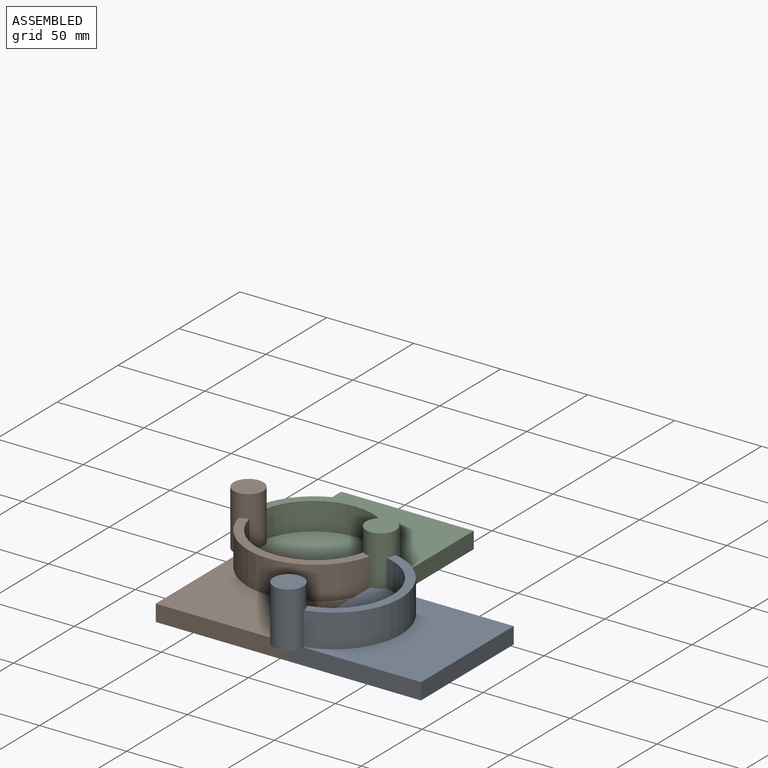
[diagram: assembled view]
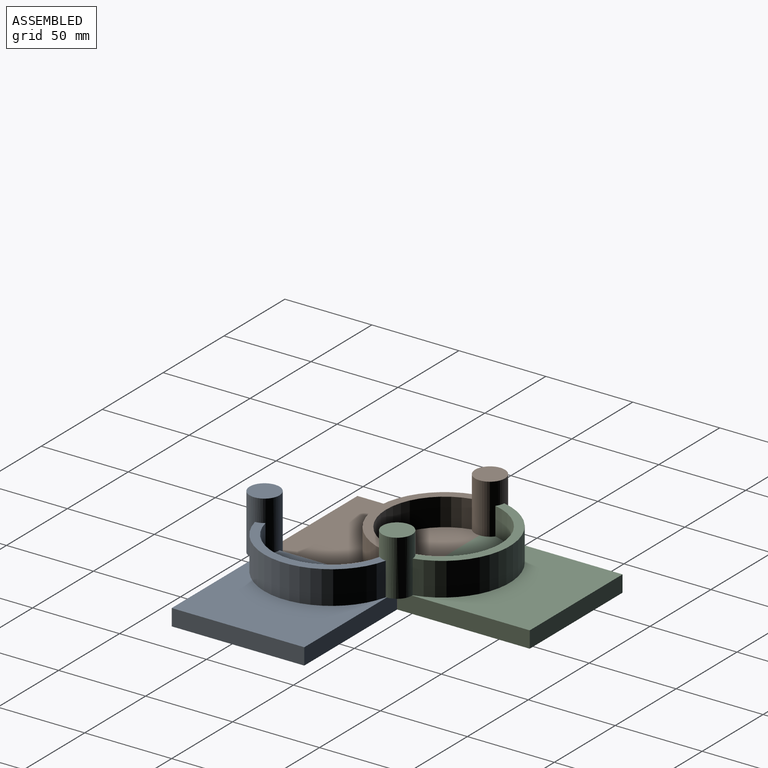
[diagram: assembled view, second angle]
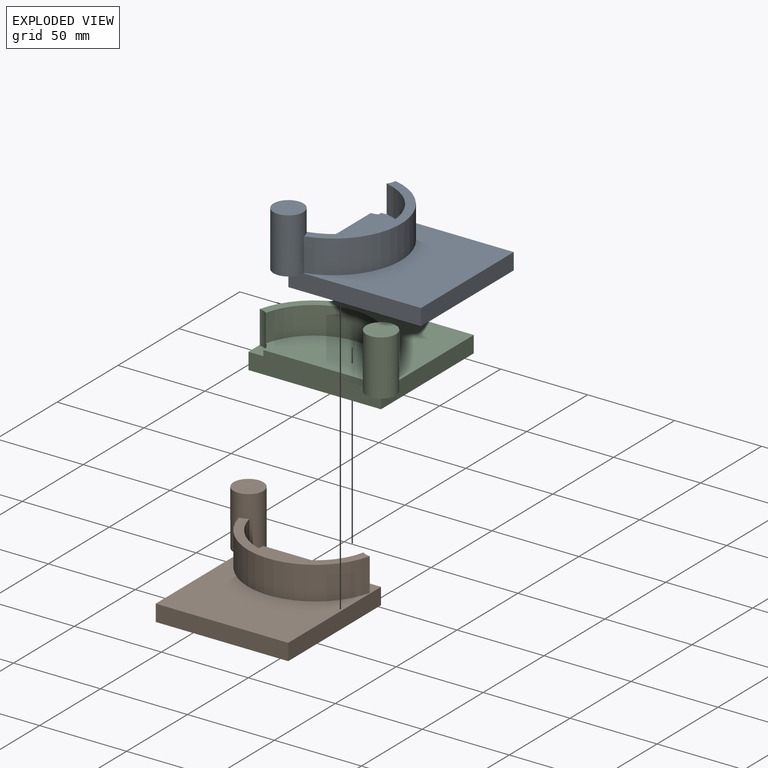
[diagram: exploded view]
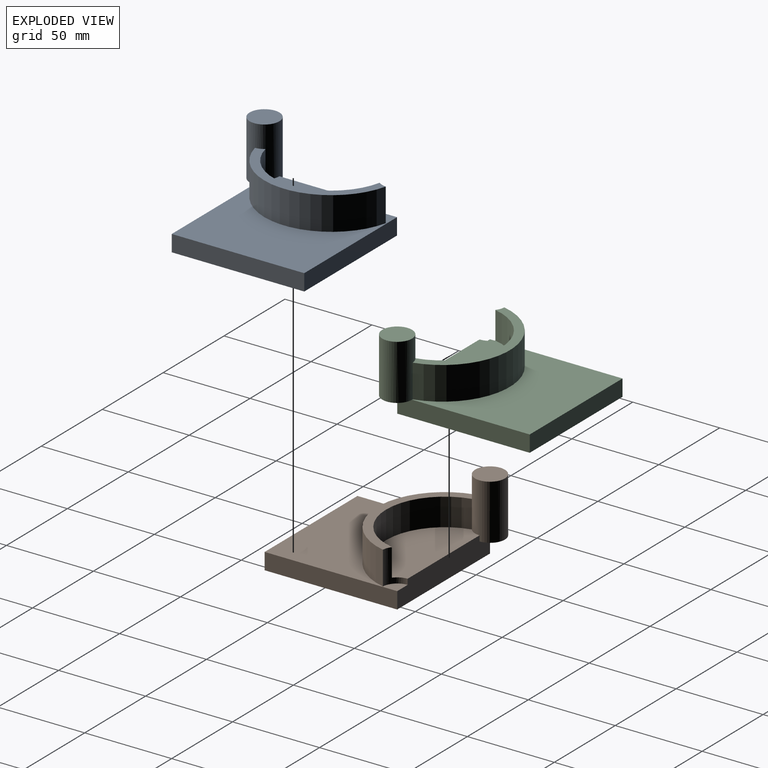
[diagram: exploded view, second angle]
ASSEMBLY  parts=3 mates=5
PART A: 14 faces, bbox 84.8x84.8x41.3 mm
  f0: plane 76.2x9.53mm, normal (0,-1,0), area 725.8mm2, adj f1,f3,f4,f5
  f1: plane 76.2x9.53mm, normal (1,0,0), area 725.8mm2, adj f0,f2,f4,f5
  f2: plane 76.2x12.7mm, normal (0,1,0), area 913.3mm2, adj f1,f3,f4,f5,f6,f8,f10,f13
  f3: plane 76.2x9.53mm, normal (-1,0,0), area 725.8mm2, adj f0,f2,f4,f5,f6
  f4: plane 76.2x76.2mm, normal (0,0,1), area 3560.6mm2, adj f0,f1,f2,f3,f8,f9,f10
  f5: plane 76.2x76.2mm, normal (0,0,-1), area 5806.4mm2, adj f0,f1,f2,f3
  f6: plane 17.15x17.15mm, normal (0,0,-1), area 173.2mm2, adj f2,f3,f8
  f7: cylinder r=33.65mm len=65.66mm, axis (0,0,-1), area 1441.7mm2, adj f8,f10,f11,f13
  f8: cylinder r=8.57mm len=31.75mm, axis (0,0,-1), area 1586.3mm2, adj f2,f4,f6,f7,f9,f11,f12,f13
  f9: cylinder r=38.73mm len=75.26mm, axis (0,0,-1), area 1964.5mm2, adj f4,f8,f10,f11
  f10: cylinder r=8.57mm len=19.05mm, axis (0,0,-1), area 123.8mm2, adj f2,f4,f7,f9,f11,f13
  f11: plane 75.26x31.34mm, normal (0,0,1), area 489.9mm2, adj f7,f8,f9,f10
  f12: plane 17.15x17.15mm, normal (0,0,1), area 230.9mm2, adj f8
  f13: plane 65.66x33.02mm, normal (0,0,1), area 1698.2mm2, adj f2,f7,f8,f10
PART B: same geometry as A
PART C: same geometry as A
PLACE A rot(axis=(0,0,1),90deg) t=(-102.71,-92.09,6.93)mm
PLACE B t=(-179.03,-92.09,6.93)mm
PLACE C rot(axis=(0,0,1),180deg) t=(-179.03,-15.89,6.93)mm
MATE planar B.f4 <-> A.f4  axis (0,0,1) through (-178.47,-105.72,16.46)mm
MATE planar A.f4 <-> C.f4  axis (0,0,1) through (-89.08,-91.53,16.46)mm
MATE planar C.f1 <-> B.f3  axis (-1,0,0) through (-217.13,-15.89,11.7)mm
MATE planar C.f2 <-> B.f2  axis (0,-1,0) through (-179.03,-53.99,13)mm
MATE planar A.f3 <-> B.f0  axis (0,-1,0) through (-64.61,-130.19,16.46)mm
